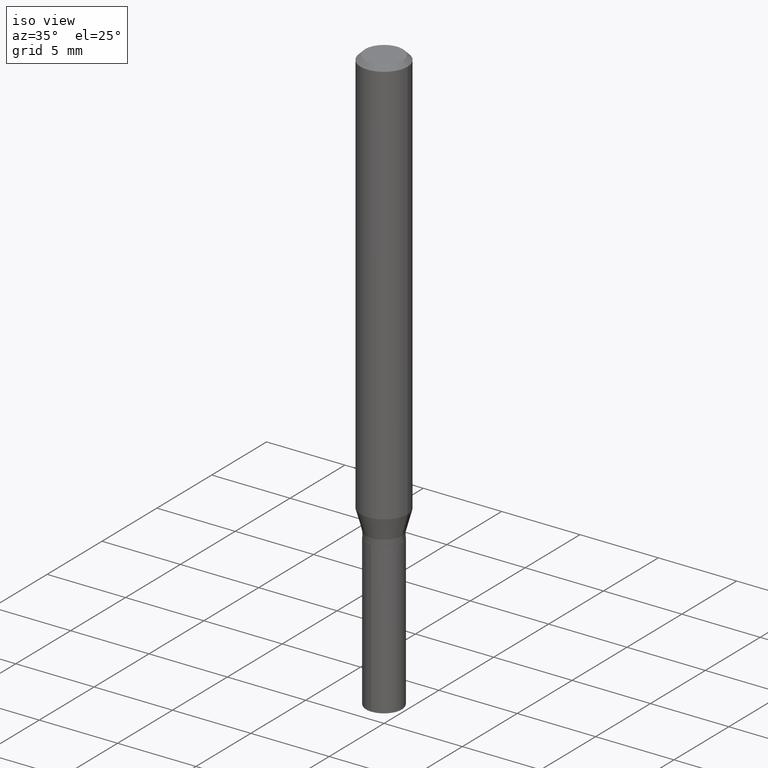
[diagram: clean part render]
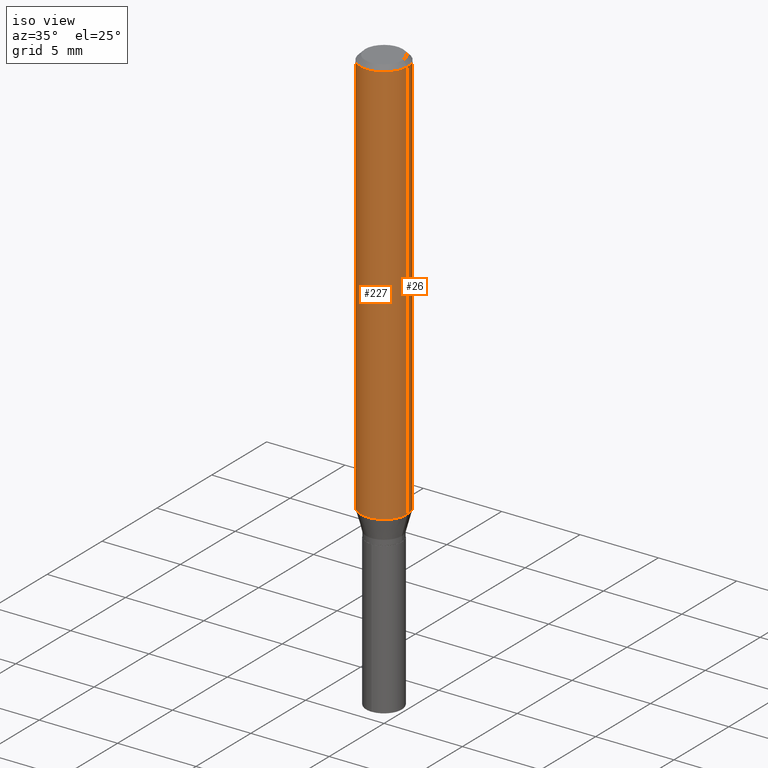
[diagram: same view with one multi-face feature highlighted, each face labeled with its STEP entity id]
A machine part, iso view. The highlighted faces form ONE feature: a constant-radius fillet chain: 2 tangent blend faces with common blend radius 1.4999 mm. The faces share edges in the B-rep.
Their STEP definitions:
[1] entity #26 (Cylinder):
#1 = CARTESIAN_POINT ( 'NONE',  ( -0.05905000000000006771, 4.195754854663396409E-16, -2.904631170795525045E-30 ) ) ;
#2 = ORIENTED_EDGE ( 'NONE', *, *, #223, .F. ) ;
#18 = DIRECTION ( 'NONE',  ( 1.000000000000000000, -6.982962677686266711E-15, 4.876176775795936353E-29 ) ) ;
#22 = VECTOR ( 'NONE', #68, 39.37007874015748143 ) ;
#23 = DIRECTION ( 'NONE',  ( -2.445468806185136597E-29, 3.491481338843145583E-15, 1.000000000000000000 ) ) ;
#24 = DIRECTION ( 'NONE',  ( 1.000000000000000000, -6.982962677686265133E-15, 0.000000000000000000 ) ) ;
#26 = ADVANCED_FACE ( 'NONE', ( #470 ), #171, .T. ) ;
#53 = DIRECTION ( 'NONE',  ( -2.445468806185136597E-29, 3.491481338843145583E-15, 1.000000000000000000 ) ) ;
#68 = DIRECTION ( 'NONE',  ( -2.445468806185136877E-29, 3.491481338843145188E-15, 1.000000000000000000 ) ) ;
#71 = EDGE_CURVE ( 'NONE', #378, #225, #426, .T. ) ;
#76 = CARTESIAN_POINT ( 'NONE',  ( 0.05905000000000013016, -4.002255315040900596E-15, -1.028191481072900038 ) ) ;
#83 = VERTEX_POINT ( 'NONE', #443 ) ;
#102 = DIRECTION ( 'NONE',  ( 1.000000000000000000, -6.982962677686266711E-15, 0.000000000000000000 ) ) ;
#171 = CYLINDRICAL_SURFACE ( 'NONE', #337, 0.05905000000000006771 ) ;
#177 = EDGE_LOOP ( 'NONE', ( #314, #268, #411, #2 ) ) ;
#191 = CARTESIAN_POINT ( 'NONE',  ( 2.514410193749072168E-29, -3.589911368923525676E-15, -1.028191481072900038 ) ) ;
#223 = EDGE_CURVE ( 'NONE', #460, #378, #297, .T. ) ;
#225 = VERTEX_POINT ( 'NONE', #408 ) ;
#226 = DIRECTION ( 'NONE',  ( -2.445468806185136597E-29, 3.491481338843145583E-15, 1.000000000000000000 ) ) ;
#246 = AXIS2_PLACEMENT_3D ( 'NONE', #401, #23, #102 ) ;
#248 = CARTESIAN_POINT ( 'NONE',  ( 0.000000000000000000, 0.000000000000000000, 0.000000000000000000 ) ) ;
#268 = ORIENTED_EDGE ( 'NONE', *, *, #358, .T. ) ;
#297 = LINE ( 'NONE', #330, #22 ) ;
#314 = ORIENTED_EDGE ( 'NONE', *, *, #490, .T. ) ;
#330 = CARTESIAN_POINT ( 'NONE',  ( 0.05905000000000006771, -4.123439461173745257E-16, 2.879382386107503723E-30 ) ) ;
#337 = AXIS2_PLACEMENT_3D ( 'NONE', #248, #53, #18 ) ;
#339 = AXIS2_PLACEMENT_3D ( 'NONE', #191, #226, #24 ) ;
#343 = LINE ( 'NONE', #1, #412 ) ;
#358 = EDGE_CURVE ( 'NONE', #83, #225, #343, .T. ) ;
#378 = VERTEX_POINT ( 'NONE', #384 ) ;
#384 = CARTESIAN_POINT ( 'NONE',  ( 0.05904999999999999832, -4.535783407291118600E-16, -0.01181000000000007738 ) ) ;
#401 = CARTESIAN_POINT ( 'NONE',  ( 2.888098660104665518E-31, -4.123439461173782112E-17, -0.01181000000000007738 ) ) ;
#408 = CARTESIAN_POINT ( 'NONE',  ( -0.05904999999999999832, -1.395997396301291223E-15, -0.01181000000000007738 ) ) ;
#411 = ORIENTED_EDGE ( 'NONE', *, *, #71, .F. ) ;
#412 = VECTOR ( 'NONE', #413, 39.37007874015748143 ) ;
#413 = DIRECTION ( 'NONE',  ( -2.445468806185136877E-29, 3.491481338843145188E-15, 1.000000000000000000 ) ) ;
#426 = CIRCLE ( 'NONE', #246, 0.05904999999999999832 ) ;
#443 = CARTESIAN_POINT ( 'NONE',  ( -0.05905000000000013016, -3.170335883457185788E-15, -1.028191481072900038 ) ) ;
#460 = VERTEX_POINT ( 'NONE', #76 ) ;
#470 = FACE_OUTER_BOUND ( 'NONE', #177, .T. ) ;
#472 = CIRCLE ( 'NONE', #339, 0.05905000000000013016 ) ;
#490 = EDGE_CURVE ( 'NONE', #460, #83, #472, .T. ) ;
[2] entity #227 (Cylinder):
#1 = CARTESIAN_POINT ( 'NONE',  ( -0.05905000000000006771, 4.195754854663396409E-16, -2.904631170795525045E-30 ) ) ;
#5 = DIRECTION ( 'NONE',  ( -2.445468806185136597E-29, 3.491481338843145583E-15, 1.000000000000000000 ) ) ;
#11 = ORIENTED_EDGE ( 'NONE', *, *, #373, .T. ) ;
#22 = VECTOR ( 'NONE', #68, 39.37007874015748143 ) ;
#27 = CYLINDRICAL_SURFACE ( 'NONE', #187, 0.05905000000000006771 ) ;
#68 = DIRECTION ( 'NONE',  ( -2.445468806185136877E-29, 3.491481338843145188E-15, 1.000000000000000000 ) ) ;
#70 = DIRECTION ( 'NONE',  ( 1.000000000000000000, -6.982962677686266711E-15, 4.876176775795936353E-29 ) ) ;
#76 = CARTESIAN_POINT ( 'NONE',  ( 0.05905000000000013016, -4.002255315040900596E-15, -1.028191481072900038 ) ) ;
#80 = AXIS2_PLACEMENT_3D ( 'NONE', #195, #5, #454 ) ;
#83 = VERTEX_POINT ( 'NONE', #443 ) ;
#106 = CARTESIAN_POINT ( 'NONE',  ( 2.888098660104665518E-31, -4.123439461173782112E-17, -0.01181000000000007738 ) ) ;
#111 = CIRCLE ( 'NONE', #80, 0.05905000000000013016 ) ;
#148 = FACE_OUTER_BOUND ( 'NONE', #190, .T. ) ;
#185 = DIRECTION ( 'NONE',  ( -2.445468806185136597E-29, 3.491481338843145583E-15, 1.000000000000000000 ) ) ;
#186 = CARTESIAN_POINT ( 'NONE',  ( 0.000000000000000000, 0.000000000000000000, 0.000000000000000000 ) ) ;
#187 = AXIS2_PLACEMENT_3D ( 'NONE', #186, #481, #70 ) ;
#190 = EDGE_LOOP ( 'NONE', ( #244, #11, #418, #429 ) ) ;
#195 = CARTESIAN_POINT ( 'NONE',  ( 2.514410193749072168E-29, -3.589911368923525676E-15, -1.028191481072900038 ) ) ;
#223 = EDGE_CURVE ( 'NONE', #460, #378, #297, .T. ) ;
#225 = VERTEX_POINT ( 'NONE', #408 ) ;
#227 = ADVANCED_FACE ( 'NONE', ( #148 ), #27, .T. ) ;
#244 = ORIENTED_EDGE ( 'NONE', *, *, #358, .F. ) ;
#297 = LINE ( 'NONE', #330, #22 ) ;
#330 = CARTESIAN_POINT ( 'NONE',  ( 0.05905000000000006771, -4.123439461173745257E-16, 2.879382386107503723E-30 ) ) ;
#343 = LINE ( 'NONE', #1, #412 ) ;
#358 = EDGE_CURVE ( 'NONE', #83, #225, #343, .T. ) ;
#361 = AXIS2_PLACEMENT_3D ( 'NONE', #106, #185, #414 ) ;
#373 = EDGE_CURVE ( 'NONE', #83, #460, #111, .T. ) ;
#378 = VERTEX_POINT ( 'NONE', #384 ) ;
#384 = CARTESIAN_POINT ( 'NONE',  ( 0.05904999999999999832, -4.535783407291118600E-16, -0.01181000000000007738 ) ) ;
#386 = CIRCLE ( 'NONE', #361, 0.05904999999999999832 ) ;
#408 = CARTESIAN_POINT ( 'NONE',  ( -0.05904999999999999832, -1.395997396301291223E-15, -0.01181000000000007738 ) ) ;
#412 = VECTOR ( 'NONE', #413, 39.37007874015748143 ) ;
#413 = DIRECTION ( 'NONE',  ( -2.445468806185136877E-29, 3.491481338843145188E-15, 1.000000000000000000 ) ) ;
#414 = DIRECTION ( 'NONE',  ( 1.000000000000000000, -6.982962677686266711E-15, 0.000000000000000000 ) ) ;
#418 = ORIENTED_EDGE ( 'NONE', *, *, #223, .T. ) ;
#429 = ORIENTED_EDGE ( 'NONE', *, *, #487, .F. ) ;
#443 = CARTESIAN_POINT ( 'NONE',  ( -0.05905000000000013016, -3.170335883457185788E-15, -1.028191481072900038 ) ) ;
#454 = DIRECTION ( 'NONE',  ( 1.000000000000000000, -6.982962677686265133E-15, 0.000000000000000000 ) ) ;
#460 = VERTEX_POINT ( 'NONE', #76 ) ;
#481 = DIRECTION ( 'NONE',  ( -2.445468806185136597E-29, 3.491481338843145583E-15, 1.000000000000000000 ) ) ;
#487 = EDGE_CURVE ( 'NONE', #225, #378, #386, .T. ) ;